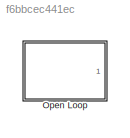
MODEL slx_f6bbcec441ec
KIND library
CONFIG AbsTol = auto
CONFIG EnableMultiTasking = off
CONFIG FixedStep = auto
CONFIG MaxStep = auto
CONFIG MinStep = auto
CONFIG RelTol = 1e-3
CONFIG SampleTimeConstraint = Unconstrained
CONFIG SolverName = VariableStepAuto
CONFIG StartTime = 0.0
CONFIG StopTime = 10.0
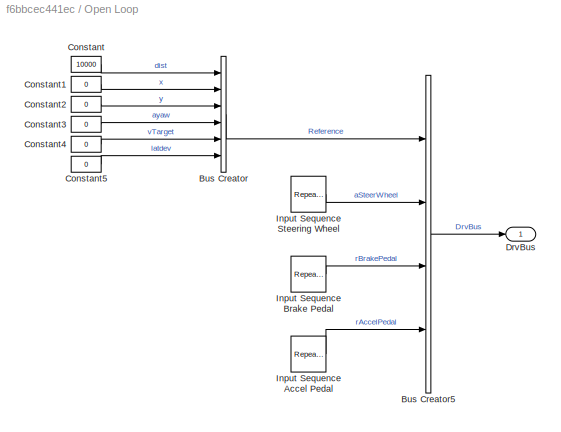
BLOCK [SubSystem] Open Loop
  Ports = [0, 1]
  RequestExecContextInheritance = off
BLOCK [BusCreator] Open Loop/Bus Creator
  DisplayOption = bar
  InheritFromInputs = on
  Inputs = 6
  Ports = [6, 1]
BLOCK [BusCreator] Open Loop/Bus Creator5
  DisplayOption = bar
  InheritFromInputs = on
  Inputs = 4
  Ports = [4, 1]
BLOCK [Constant] Open Loop/Constant
  Value = 10000
BLOCK [Constant] Open Loop/Constant1
  Value = 0
BLOCK [Constant] Open Loop/Constant2
  Value = 0
BLOCK [Constant] Open Loop/Constant3
  Value = 0
BLOCK [Constant] Open Loop/Constant4
  Value = 0
BLOCK [Constant] Open Loop/Constant5
  Value = 0
BLOCK [Outport] Open Loop/DrvBus
  VectorParamsAs1DForOutWhenUnconnected = off
BLOCK [Reference] Open Loop/Input Sequence Accel Pedal  REF=simulink/Sources/Repeating
Sequence
  Ports = [0, 1]
  SourceBlock = simulink/Sources/Repeating\nSequence
  SourceProductBaseCode = SL
  SourceType = Repeating table
BLOCK [Reference] Open Loop/Input Sequence Brake Pedal  REF=simulink/Sources/Repeating
Sequence
  Ports = [0, 1]
  SourceBlock = simulink/Sources/Repeating\nSequence
  SourceProductBaseCode = SL
  SourceType = Repeating table
BLOCK [Reference] Open Loop/Input Sequence Steering Wheel   REF=simulink/Sources/Repeating
Sequence
  Ports = [0, 1]
  SourceBlock = simulink/Sources/Repeating\nSequence
  SourceProductBaseCode = SL
  SourceType = Repeating table
LINE Open Loop/Bus Creator5:1 -> Open Loop/DrvBus:1
LINE Open Loop/Bus Creator:1 -> Open Loop/Bus Creator5:1
LINE Open Loop/Constant1:1 -> Open Loop/Bus Creator:2
LINE Open Loop/Constant2:1 -> Open Loop/Bus Creator:3
LINE Open Loop/Constant3:1 -> Open Loop/Bus Creator:4
LINE Open Loop/Constant4:1 -> Open Loop/Bus Creator:5
LINE Open Loop/Constant5:1 -> Open Loop/Bus Creator:6
LINE Open Loop/Constant:1 -> Open Loop/Bus Creator:1
LINE Open Loop/Input Sequence Accel Pedal:1 -> Open Loop/Bus Creator5:4
LINE Open Loop/Input Sequence Brake Pedal:1 -> Open Loop/Bus Creator5:3
LINE Open Loop/Input Sequence Steering Wheel :1 -> Open Loop/Bus Creator5:2
